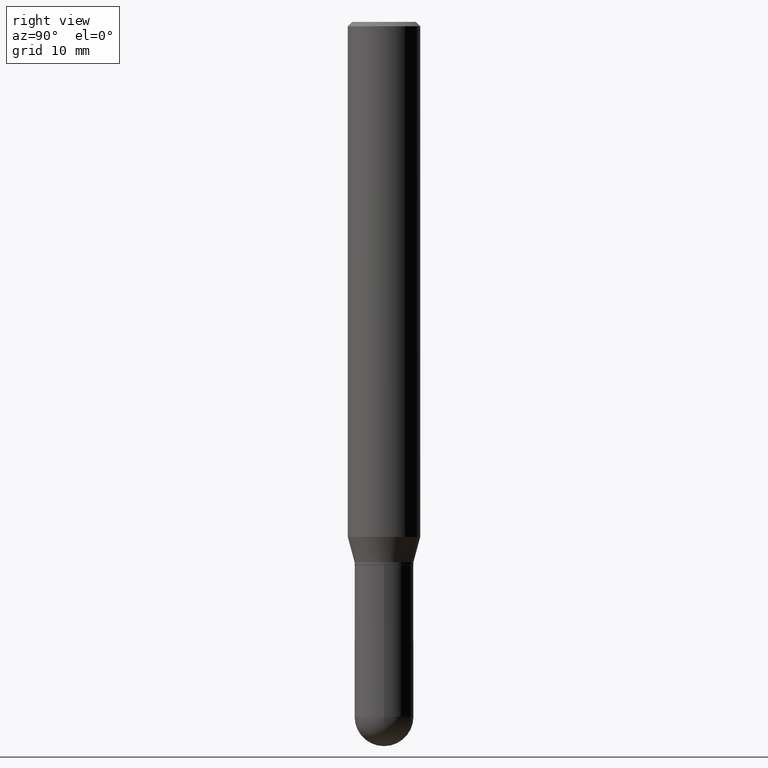
[diagram: clean part render]
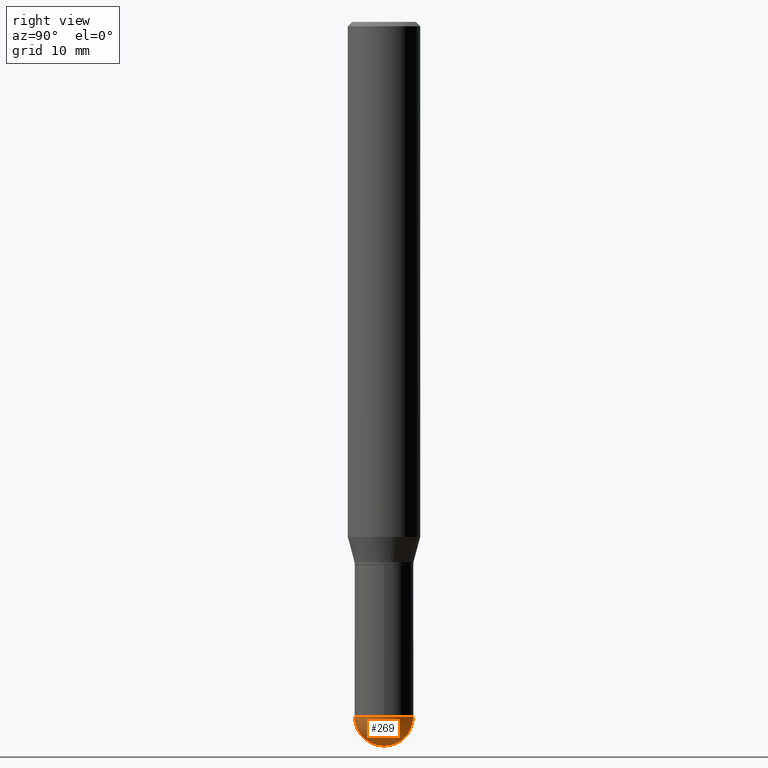
[diagram: same view with one face highlighted and labeled with its STEP entity id]
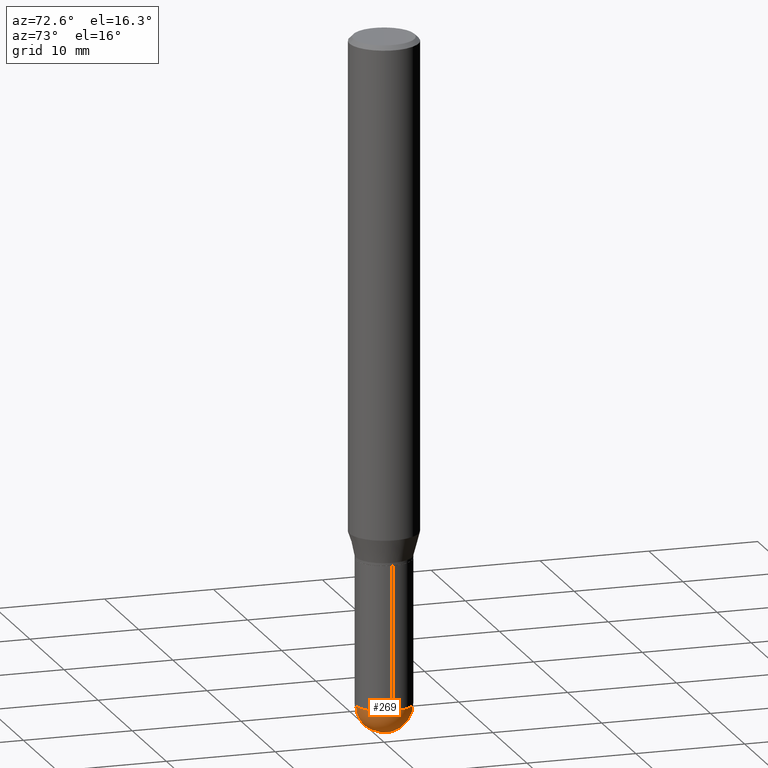
[diagram: same view with one face highlighted and labeled with its STEP entity id]
A machine part, right view. The second image highlights one B-rep face of the part: STEP entity #269.
A second angle (auxiliary view) of the same face is appended — the face is thin or edge-on in the first view.
In plain terms, the highlighted spherical surface has radius 2.5794 mm.
Its self-contained STEP definition (entity closure, byte-faithful):
#14 = CARTESIAN_POINT ( 'NONE',  ( 5.899408758987094508E-29, -8.325347365436315775E-15, -2.398450000000000415 ) ) ;
#20 = CARTESIAN_POINT ( 'NONE',  ( 6.152088223088502938E-29, -8.673689151273167162E-15, -2.500000000000000000 ) ) ;
#22 = EDGE_CURVE ( 'NONE', #301, #316, #102, .T. ) ;
#37 = ORIENTED_EDGE ( 'NONE', *, *, #22, .F. ) ;
#42 = SPHERICAL_SURFACE ( 'NONE', #433, 0.1015499999999999736 ) ;
#62 = CIRCLE ( 'NONE', #499, 0.1015499999999999736 ) ;
#64 = DIRECTION ( 'NONE',  ( -1.000000000000000000, 7.105427357601001070E-15, -4.926315508542082329E-29 ) ) ;
#66 = DIRECTION ( 'NONE',  ( 1.000000000000000000, -6.982962677686258033E-15, 0.000000000000000000 ) ) ;
#75 = VERTEX_POINT ( 'NONE', #20 ) ;
#102 = CIRCLE ( 'NONE', #251, 0.1015500000000000985 ) ;
#106 = DIRECTION ( 'NONE',  ( 1.000000000000000000, -6.982962677686265922E-15, 4.883557194083112340E-29 ) ) ;
#122 = ORIENTED_EDGE ( 'NONE', *, *, #363, .F. ) ;
#130 = CARTESIAN_POINT ( 'NONE',  ( 5.899408758987094508E-29, -8.325347365436315775E-15, -2.398450000000000415 ) ) ;
#133 = CIRCLE ( 'NONE', #399, 0.1015500000000000985 ) ;
#136 = DIRECTION ( 'NONE',  ( -2.445468806185136597E-29, 3.491481338843145583E-15, 1.000000000000000000 ) ) ;
#159 = FACE_OUTER_BOUND ( 'NONE', #370, .T. ) ;
#201 = CARTESIAN_POINT ( 'NONE',  ( 0.1015500000000000985, -8.169455323658661228E-15, -2.398450000000000415 ) ) ;
#204 = CARTESIAN_POINT ( 'NONE',  ( 5.899408758987094508E-29, -8.325347365436315775E-15, -2.398450000000000415 ) ) ;
#212 = ORIENTED_EDGE ( 'NONE', *, *, #347, .T. ) ;
#219 = VERTEX_POINT ( 'NONE', #429 ) ;
#251 = AXIS2_PLACEMENT_3D ( 'NONE', #445, #136, #256 ) ;
#256 = DIRECTION ( 'NONE',  ( 1.000000000000000000, -6.982962677686258033E-15, 0.000000000000000000 ) ) ;
#269 = ADVANCED_FACE ( 'NONE', ( #159 ), #42, .T. ) ;
#299 = DIRECTION ( 'NONE',  ( 6.982962677686266711E-15, 1.000000000000000000, 0.000000000000000000 ) ) ;
#301 = VERTEX_POINT ( 'NONE', #477 ) ;
#302 = CARTESIAN_POINT ( 'NONE',  ( 5.865334658194741045E-29, -8.374143417148343763E-15, -2.398450000000000415 ) ) ;
#316 = VERTEX_POINT ( 'NONE', #201 ) ;
#317 = AXIS2_PLACEMENT_3D ( 'NONE', #14, #106, #299 ) ;
#321 = DIRECTION ( 'NONE',  ( 6.982962677686266711E-15, 1.000000000000000000, -2.690150658458162309E-15 ) ) ;
#347 = EDGE_CURVE ( 'NONE', #75, #219, #478, .T. ) ;
#363 = EDGE_CURVE ( 'NONE', #316, #219, #133, .T. ) ;
#370 = EDGE_LOOP ( 'NONE', ( #472, #212, #122, #37 ) ) ;
#382 = DIRECTION ( 'NONE',  ( -7.105427357601001070E-15, -1.000000000000000000, 0.000000000000000000 ) ) ;
#399 = AXIS2_PLACEMENT_3D ( 'NONE', #302, #455, #66 ) ;
#429 = CARTESIAN_POINT ( 'NONE',  ( 7.091198599190993550E-16, 0.1015499999999916747, -2.398450000000000415 ) ) ;
#433 = AXIS2_PLACEMENT_3D ( 'NONE', #204, #512, #321 ) ;
#445 = CARTESIAN_POINT ( 'NONE',  ( 5.865334658194741045E-29, -8.374143417148343763E-15, -2.398450000000000415 ) ) ;
#453 = EDGE_CURVE ( 'NONE', #75, #301, #62, .T. ) ;
#455 = DIRECTION ( 'NONE',  ( -2.445468806185136597E-29, 3.491481338843145583E-15, 1.000000000000000000 ) ) ;
#472 = ORIENTED_EDGE ( 'NONE', *, *, #453, .F. ) ;
#477 = CARTESIAN_POINT ( 'NONE',  ( -7.215561481643230770E-16, -0.1015500000000083697, -2.398449999999999971 ) ) ;
#478 = CIRCLE ( 'NONE', #317, 0.1015499999999999736 ) ;
#499 = AXIS2_PLACEMENT_3D ( 'NONE', #130, #64, #382 ) ;
#512 = DIRECTION ( 'NONE',  ( -1.000000000000000000, 6.982962677686266711E-15, -4.883557194083112901E-29 ) ) ;